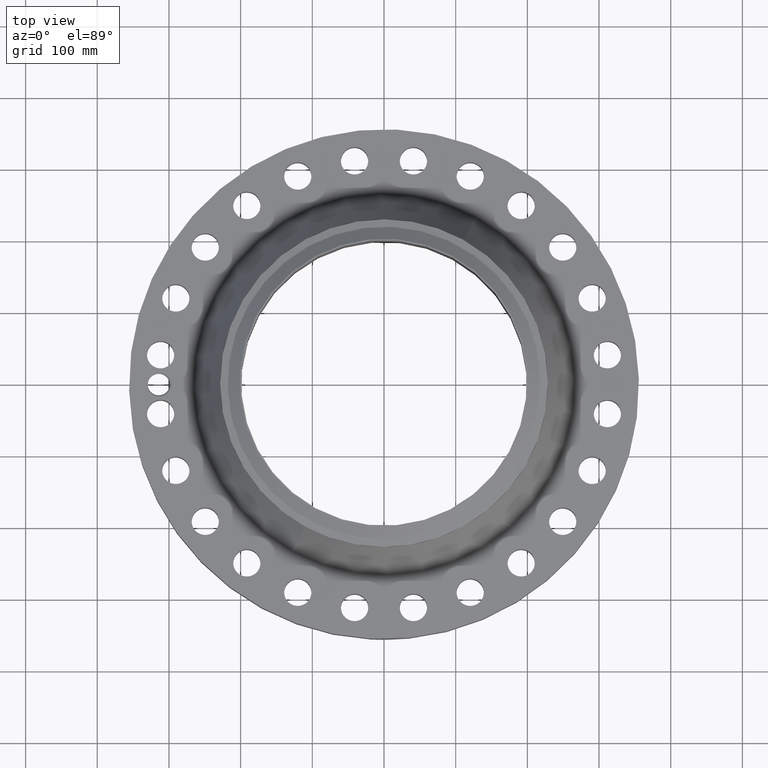
[diagram: clean part render]
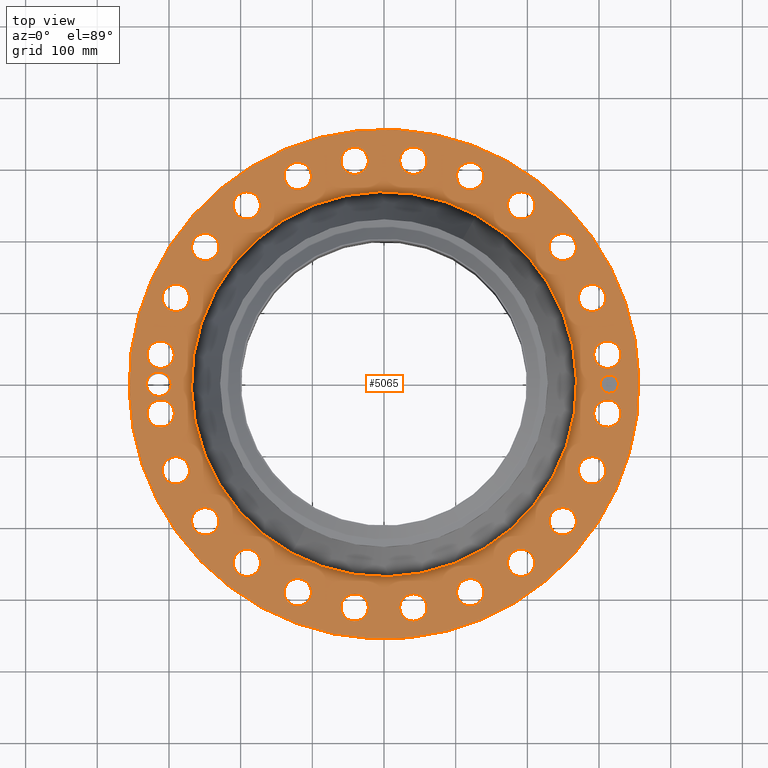
[diagram: same view with one face highlighted and labeled with its STEP entity id]
A machine part, top view. The second image highlights one B-rep face of the part: STEP entity #5065.
In plain terms, the highlighted planar face has unit normal (0, 0, -1).
Its self-contained STEP definition (entity closure, byte-faithful):
#3574=AXIS2_PLACEMENT_3D('Circle Axis2P3D',#3572,#3573,$) ;
#3600=AXIS2_PLACEMENT_3D('Circle Axis2P3D',#3598,#3599,$) ;
#4545=AXIS2_PLACEMENT_3D('Plane Axis2P3D',#4542,#4543,#4544) ;
#4549=AXIS2_PLACEMENT_3D('Circle Axis2P3D',#4547,#4548,$) ;
#4558=AXIS2_PLACEMENT_3D('Circle Axis2P3D',#4556,#4557,$) ;
#4595=AXIS2_PLACEMENT_3D('Circle Axis2P3D',#4593,#4594,$) ;
#4602=AXIS2_PLACEMENT_3D('Circle Axis2P3D',#4600,#4601,$) ;
#4613=AXIS2_PLACEMENT_3D('Circle Axis2P3D',#4611,#4612,$) ;
#4622=AXIS2_PLACEMENT_3D('Circle Axis2P3D',#4620,#4621,$) ;
#4635=AXIS2_PLACEMENT_3D('Circle Axis2P3D',#4633,#4634,$) ;
#4644=AXIS2_PLACEMENT_3D('Circle Axis2P3D',#4642,#4643,$) ;
#4653=AXIS2_PLACEMENT_3D('Circle Axis2P3D',#4651,#4652,$) ;
#4662=AXIS2_PLACEMENT_3D('Circle Axis2P3D',#4660,#4661,$) ;
#4671=AXIS2_PLACEMENT_3D('Circle Axis2P3D',#4669,#4670,$) ;
#4680=AXIS2_PLACEMENT_3D('Circle Axis2P3D',#4678,#4679,$) ;
#4689=AXIS2_PLACEMENT_3D('Circle Axis2P3D',#4687,#4688,$) ;
#4698=AXIS2_PLACEMENT_3D('Circle Axis2P3D',#4696,#4697,$) ;
#4707=AXIS2_PLACEMENT_3D('Circle Axis2P3D',#4705,#4706,$) ;
#4716=AXIS2_PLACEMENT_3D('Circle Axis2P3D',#4714,#4715,$) ;
#4725=AXIS2_PLACEMENT_3D('Circle Axis2P3D',#4723,#4724,$) ;
#4734=AXIS2_PLACEMENT_3D('Circle Axis2P3D',#4732,#4733,$) ;
#4743=AXIS2_PLACEMENT_3D('Circle Axis2P3D',#4741,#4742,$) ;
#4752=AXIS2_PLACEMENT_3D('Circle Axis2P3D',#4750,#4751,$) ;
#4761=AXIS2_PLACEMENT_3D('Circle Axis2P3D',#4759,#4760,$) ;
#4770=AXIS2_PLACEMENT_3D('Circle Axis2P3D',#4768,#4769,$) ;
#4779=AXIS2_PLACEMENT_3D('Circle Axis2P3D',#4777,#4778,$) ;
#4788=AXIS2_PLACEMENT_3D('Circle Axis2P3D',#4786,#4787,$) ;
#4797=AXIS2_PLACEMENT_3D('Circle Axis2P3D',#4795,#4796,$) ;
#4806=AXIS2_PLACEMENT_3D('Circle Axis2P3D',#4804,#4805,$) ;
#4815=AXIS2_PLACEMENT_3D('Circle Axis2P3D',#4813,#4814,$) ;
#4824=AXIS2_PLACEMENT_3D('Circle Axis2P3D',#4822,#4823,$) ;
#4833=AXIS2_PLACEMENT_3D('Circle Axis2P3D',#4831,#4832,$) ;
#4842=AXIS2_PLACEMENT_3D('Circle Axis2P3D',#4840,#4841,$) ;
#4851=AXIS2_PLACEMENT_3D('Circle Axis2P3D',#4849,#4850,$) ;
#4860=AXIS2_PLACEMENT_3D('Circle Axis2P3D',#4858,#4859,$) ;
#4869=AXIS2_PLACEMENT_3D('Circle Axis2P3D',#4867,#4868,$) ;
#4878=AXIS2_PLACEMENT_3D('Circle Axis2P3D',#4876,#4877,$) ;
#4887=AXIS2_PLACEMENT_3D('Circle Axis2P3D',#4885,#4886,$) ;
#4896=AXIS2_PLACEMENT_3D('Circle Axis2P3D',#4894,#4895,$) ;
#4905=AXIS2_PLACEMENT_3D('Circle Axis2P3D',#4903,#4904,$) ;
#4914=AXIS2_PLACEMENT_3D('Circle Axis2P3D',#4912,#4913,$) ;
#4923=AXIS2_PLACEMENT_3D('Circle Axis2P3D',#4921,#4922,$) ;
#4932=AXIS2_PLACEMENT_3D('Circle Axis2P3D',#4930,#4931,$) ;
#4941=AXIS2_PLACEMENT_3D('Circle Axis2P3D',#4939,#4940,$) ;
#4950=AXIS2_PLACEMENT_3D('Circle Axis2P3D',#4948,#4949,$) ;
#4959=AXIS2_PLACEMENT_3D('Circle Axis2P3D',#4957,#4958,$) ;
#4968=AXIS2_PLACEMENT_3D('Circle Axis2P3D',#4966,#4967,$) ;
#4977=AXIS2_PLACEMENT_3D('Circle Axis2P3D',#4975,#4976,$) ;
#4986=AXIS2_PLACEMENT_3D('Circle Axis2P3D',#4984,#4985,$) ;
#4995=AXIS2_PLACEMENT_3D('Circle Axis2P3D',#4993,#4994,$) ;
#5004=AXIS2_PLACEMENT_3D('Circle Axis2P3D',#5002,#5003,$) ;
#5013=AXIS2_PLACEMENT_3D('Circle Axis2P3D',#5011,#5012,$) ;
#5022=AXIS2_PLACEMENT_3D('Circle Axis2P3D',#5020,#5021,$) ;
#5031=AXIS2_PLACEMENT_3D('Circle Axis2P3D',#5029,#5030,$) ;
#5040=AXIS2_PLACEMENT_3D('Circle Axis2P3D',#5038,#5039,$) ;
#5049=AXIS2_PLACEMENT_3D('Circle Axis2P3D',#5047,#5048,$) ;
#5058=AXIS2_PLACEMENT_3D('Circle Axis2P3D',#5056,#5057,$) ;
#3572=CARTESIAN_POINT('Axis2P3D Location',(0.,0.,2.93200000001)) ;
#3576=CARTESIAN_POINT('Vertex',(-5.06982919661,-9.28026009557,2.93200000001)) ;
#3578=CARTESIAN_POINT('Vertex',(5.06982919661,9.28026009557,2.93200000001)) ;
#3598=CARTESIAN_POINT('Axis2P3D Location',(0.,0.,2.93200000001)) ;
#4542=CARTESIAN_POINT('Axis2P3D Location',(0.,14.0000000001,2.93200000001)) ;
#4547=CARTESIAN_POINT('Axis2P3D Location',(0.,0.,2.93200000001)) ;
#4551=CARTESIAN_POINT('Vertex',(6.71195754049,12.2861558665,2.93200000001)) ;
#4553=CARTESIAN_POINT('Vertex',(-6.71195754049,-12.2861558665,2.93200000001)) ;
#4556=CARTESIAN_POINT('Axis2P3D Location',(0.,0.,2.93200000001)) ;
#4566=CARTESIAN_POINT('Control Point',(-11.6875,0.,2.93200000001)) ;
#4567=CARTESIAN_POINT('Control Point',(-11.6898630864,0.0644949468364,2.93200000001)) ;
#4568=CARTESIAN_POINT('Control Point',(-11.6997943863,0.128582366952,2.93200000001)) ;
#4569=CARTESIAN_POINT('Control Point',(-11.717233344,0.191067040736,2.93200000001)) ;
#4570=CARTESIAN_POINT('Control Point',(-11.754656436,0.281919351086,2.93200000001)) ;
#4571=CARTESIAN_POINT('Control Point',(-11.807254365,0.363946381804,2.93200000001)) ;
#4572=CARTESIAN_POINT('Control Point',(-11.8269876698,0.390887015035,2.93200000001)) ;
#4573=CARTESIAN_POINT('Control Point',(-11.8483164791,0.416507286149,2.93200000001)) ;
#4574=CARTESIAN_POINT('Control Point',(-11.8711216732,0.440684685191,2.93200000001)) ;
#4575=CARTESIAN_POINT('Vertex',(-11.6875,0.,2.93200000001)) ;
#4577=CARTESIAN_POINT('Vertex',(-11.8711216732,0.440684685191,2.93200000001)) ;
#4581=CARTESIAN_POINT('Control Point',(-11.6875,2.23792987641E-015,2.93200000001)) ;
#4582=CARTESIAN_POINT('Control Point',(-11.6898637452,-0.0645129252923,2.93200000001)) ;
#4583=CARTESIAN_POINT('Control Point',(-11.6997999211,-0.128618094405,2.93200000001)) ;
#4584=CARTESIAN_POINT('Control Point',(-11.7172377248,-0.191096276517,2.93200000001)) ;
#4585=CARTESIAN_POINT('Control Point',(-11.7546734013,-0.281977139815,2.93200000001)) ;
#4586=CARTESIAN_POINT('Control Point',(-11.8072635516,-0.363983566263,2.93200000001)) ;
#4587=CARTESIAN_POINT('Control Point',(-11.8270220494,-0.390950046856,2.93200000001)) ;
#4588=CARTESIAN_POINT('Control Point',(-11.8483754451,-0.416588625406,2.93200000001)) ;
#4589=CARTESIAN_POINT('Control Point',(-11.8712035038,-0.440778232698,2.93200000001)) ;
#4590=CARTESIAN_POINT('Vertex',(-11.8712035038,-0.440778232698,2.93200000001)) ;
#4593=CARTESIAN_POINT('Axis2P3D Location',(-12.375,-8.95171950564E-015,2.93200000001)) ;
#4597=CARTESIAN_POINT('Vertex',(-12.962453767,0.320927455543,2.93200000001)) ;
#4600=CARTESIAN_POINT('Axis2P3D Location',(-12.375,-8.95171950564E-015,2.93200000001)) ;
#4611=CARTESIAN_POINT('Axis2P3D Location',(12.2691301595,-1.61526162873,2.93200000001)) ;
#4615=CARTESIAN_POINT('Vertex',(11.6109432381,-1.25569247478,2.93200000001)) ;
#4617=CARTESIAN_POINT('Vertex',(12.927317081,-1.97483078268,2.93200000001)) ;
#4620=CARTESIAN_POINT('Axis2P3D Location',(12.2691301595,-1.61526162873,2.93200000001)) ;
#4633=CARTESIAN_POINT('Axis2P3D Location',(11.4330092149,-4.73570747554,2.93200000001)) ;
#4637=CARTESIAN_POINT('Vertex',(11.9757056157,-5.25337591818,2.93200000001)) ;
#4639=CARTESIAN_POINT('Vertex',(10.890312814,-4.21803903289,2.93200000001)) ;
#4642=CARTESIAN_POINT('Axis2P3D Location',(11.4330092149,-4.73570747554,2.93200000001)) ;
#4651=CARTESIAN_POINT('Axis2P3D Location',(9.81774758614,-7.53342268401,2.93200000001)) ;
#4655=CARTESIAN_POINT('Vertex',(10.2079696036,-8.17391216647,2.93200000001)) ;
#4657=CARTESIAN_POINT('Vertex',(9.42752556873,-6.89293320156,2.93200000001)) ;
#4660=CARTESIAN_POINT('Axis2P3D Location',(9.81774758614,-7.53342268401,2.93200000001)) ;
#4669=CARTESIAN_POINT('Axis2P3D Location',(7.53342268401,-9.81774758614,2.93200000001)) ;
#4673=CARTESIAN_POINT('Vertex',(7.74457733237,-10.5374098086,2.93200000001)) ;
#4675=CARTESIAN_POINT('Vertex',(7.32226803566,-9.09808536365,2.93200000001)) ;
#4678=CARTESIAN_POINT('Axis2P3D Location',(7.53342268401,-9.81774758614,2.93200000001)) ;
#4687=CARTESIAN_POINT('Axis2P3D Location',(4.73570747554,-11.4330092149,2.93200000001)) ;
#4691=CARTESIAN_POINT('Vertex',(4.75340491451,-12.1828003862,2.93200000001)) ;
#4693=CARTESIAN_POINT('Vertex',(4.71801003657,-10.6832180435,2.93200000001)) ;
#4696=CARTESIAN_POINT('Axis2P3D Location',(4.73570747554,-11.4330092149,2.93200000001)) ;
#4705=CARTESIAN_POINT('Axis2P3D Location',(1.61526162873,-12.2691301595,2.93200000001)) ;
#4709=CARTESIAN_POINT('Vertex',(1.43829580709,-12.9979532506,2.93200000001)) ;
#4711=CARTESIAN_POINT('Vertex',(1.79222745037,-11.5403070685,2.93200000001)) ;
#4714=CARTESIAN_POINT('Axis2P3D Location',(1.61526162873,-12.2691301595,2.93200000001)) ;
#4723=CARTESIAN_POINT('Axis2P3D Location',(-1.61526162873,-12.2691301595,2.93200000001)) ;
#4727=CARTESIAN_POINT('Vertex',(-1.97483078268,-12.927317081,2.93200000001)) ;
#4729=CARTESIAN_POINT('Vertex',(-1.25569247478,-11.6109432381,2.93200000001)) ;
#4732=CARTESIAN_POINT('Axis2P3D Location',(-1.61526162873,-12.2691301595,2.93200000001)) ;
#4741=CARTESIAN_POINT('Axis2P3D Location',(-4.73570747554,-11.4330092149,2.93200000001)) ;
#4745=CARTESIAN_POINT('Vertex',(-5.25337591818,-11.9757056157,2.93200000001)) ;
#4747=CARTESIAN_POINT('Vertex',(-4.21803903289,-10.890312814,2.93200000001)) ;
#4750=CARTESIAN_POINT('Axis2P3D Location',(-4.73570747554,-11.4330092149,2.93200000001)) ;
#4759=CARTESIAN_POINT('Axis2P3D Location',(-7.53342268401,-9.81774758614,2.93200000001)) ;
#4763=CARTESIAN_POINT('Vertex',(-8.17391216647,-10.2079696036,2.93200000001)) ;
#4765=CARTESIAN_POINT('Vertex',(-6.89293320156,-9.42752556873,2.93200000001)) ;
#4768=CARTESIAN_POINT('Axis2P3D Location',(-7.53342268401,-9.81774758614,2.93200000001)) ;
#4777=CARTESIAN_POINT('Axis2P3D Location',(-9.81774758614,-7.53342268401,2.93200000001)) ;
#4781=CARTESIAN_POINT('Vertex',(-10.5374098086,-7.74457733237,2.93200000001)) ;
#4783=CARTESIAN_POINT('Vertex',(-9.09808536365,-7.32226803566,2.93200000001)) ;
#4786=CARTESIAN_POINT('Axis2P3D Location',(-9.81774758614,-7.53342268401,2.93200000001)) ;
#4795=CARTESIAN_POINT('Axis2P3D Location',(-11.4330092149,-4.73570747554,2.93200000001)) ;
#4799=CARTESIAN_POINT('Vertex',(-12.1828003862,-4.75340491451,2.93200000001)) ;
#4801=CARTESIAN_POINT('Vertex',(-10.6832180435,-4.71801003657,2.93200000001)) ;
#4804=CARTESIAN_POINT('Axis2P3D Location',(-11.4330092149,-4.73570747554,2.93200000001)) ;
#4813=CARTESIAN_POINT('Axis2P3D Location',(-12.2691301595,-1.61526162873,2.93200000001)) ;
#4817=CARTESIAN_POINT('Vertex',(-12.9979532506,-1.43829580709,2.93200000001)) ;
#4819=CARTESIAN_POINT('Vertex',(-11.5403070685,-1.79222745037,2.93200000001)) ;
#4822=CARTESIAN_POINT('Axis2P3D Location',(-12.2691301595,-1.61526162873,2.93200000001)) ;
#4831=CARTESIAN_POINT('Axis2P3D Location',(-12.2691301595,1.61526162873,2.93200000001)) ;
#4835=CARTESIAN_POINT('Vertex',(-12.927317081,1.97483078268,2.93200000001)) ;
#4837=CARTESIAN_POINT('Vertex',(-11.6109432381,1.25569247478,2.93200000001)) ;
#4840=CARTESIAN_POINT('Axis2P3D Location',(-12.2691301595,1.61526162873,2.93200000001)) ;
#4849=CARTESIAN_POINT('Axis2P3D Location',(-11.4330092149,4.73570747554,2.93200000001)) ;
#4853=CARTESIAN_POINT('Vertex',(-11.9757056157,5.25337591818,2.93200000001)) ;
#4855=CARTESIAN_POINT('Vertex',(-10.890312814,4.21803903289,2.93200000001)) ;
#4858=CARTESIAN_POINT('Axis2P3D Location',(-11.4330092149,4.73570747554,2.93200000001)) ;
#4867=CARTESIAN_POINT('Axis2P3D Location',(-9.81774758614,7.53342268401,2.93200000001)) ;
#4871=CARTESIAN_POINT('Vertex',(-10.2079696036,8.17391216647,2.93200000001)) ;
#4873=CARTESIAN_POINT('Vertex',(-9.42752556873,6.89293320156,2.93200000001)) ;
#4876=CARTESIAN_POINT('Axis2P3D Location',(-9.81774758614,7.53342268401,2.93200000001)) ;
#4885=CARTESIAN_POINT('Axis2P3D Location',(-7.53342268401,9.81774758614,2.93200000001)) ;
#4889=CARTESIAN_POINT('Vertex',(-7.74457733237,10.5374098086,2.93200000001)) ;
#4891=CARTESIAN_POINT('Vertex',(-7.32226803566,9.09808536365,2.93200000001)) ;
#4894=CARTESIAN_POINT('Axis2P3D Location',(-7.53342268401,9.81774758614,2.93200000001)) ;
#4903=CARTESIAN_POINT('Axis2P3D Location',(-4.73570747554,11.4330092149,2.93200000001)) ;
#4907=CARTESIAN_POINT('Vertex',(-4.75340491451,12.1828003862,2.93200000001)) ;
#4909=CARTESIAN_POINT('Vertex',(-4.71801003657,10.6832180435,2.93200000001)) ;
#4912=CARTESIAN_POINT('Axis2P3D Location',(-4.73570747554,11.4330092149,2.93200000001)) ;
#4921=CARTESIAN_POINT('Axis2P3D Location',(-1.61526162873,12.2691301595,2.93200000001)) ;
#4925=CARTESIAN_POINT('Vertex',(-1.43829580709,12.9979532506,2.93200000001)) ;
#4927=CARTESIAN_POINT('Vertex',(-1.79222745037,11.5403070685,2.93200000001)) ;
#4930=CARTESIAN_POINT('Axis2P3D Location',(-1.61526162873,12.2691301595,2.93200000001)) ;
#4939=CARTESIAN_POINT('Axis2P3D Location',(1.61526162873,12.2691301595,2.93200000001)) ;
#4943=CARTESIAN_POINT('Vertex',(1.97483078268,12.927317081,2.93200000001)) ;
#4945=CARTESIAN_POINT('Vertex',(1.25569247478,11.6109432381,2.93200000001)) ;
#4948=CARTESIAN_POINT('Axis2P3D Location',(1.61526162873,12.2691301595,2.93200000001)) ;
#4957=CARTESIAN_POINT('Axis2P3D Location',(4.73570747554,11.4330092149,2.93200000001)) ;
#4961=CARTESIAN_POINT('Vertex',(5.25337591818,11.9757056157,2.93200000001)) ;
#4963=CARTESIAN_POINT('Vertex',(4.21803903289,10.890312814,2.93200000001)) ;
#4966=CARTESIAN_POINT('Axis2P3D Location',(4.73570747554,11.4330092149,2.93200000001)) ;
#4975=CARTESIAN_POINT('Axis2P3D Location',(7.53342268401,9.81774758614,2.93200000001)) ;
#4979=CARTESIAN_POINT('Vertex',(8.17391216647,10.2079696036,2.93200000001)) ;
#4981=CARTESIAN_POINT('Vertex',(6.89293320156,9.42752556873,2.93200000001)) ;
#4984=CARTESIAN_POINT('Axis2P3D Location',(7.53342268401,9.81774758614,2.93200000001)) ;
#4993=CARTESIAN_POINT('Axis2P3D Location',(9.81774758614,7.53342268401,2.93200000001)) ;
#4997=CARTESIAN_POINT('Vertex',(10.5374098086,7.74457733237,2.93200000001)) ;
#4999=CARTESIAN_POINT('Vertex',(9.09808536365,7.32226803566,2.93200000001)) ;
#5002=CARTESIAN_POINT('Axis2P3D Location',(9.81774758614,7.53342268401,2.93200000001)) ;
#5011=CARTESIAN_POINT('Axis2P3D Location',(11.4330092149,4.73570747554,2.93200000001)) ;
#5015=CARTESIAN_POINT('Vertex',(12.1828003862,4.75340491451,2.93200000001)) ;
#5017=CARTESIAN_POINT('Vertex',(10.6832180435,4.71801003657,2.93200000001)) ;
#5020=CARTESIAN_POINT('Axis2P3D Location',(11.4330092149,4.73570747554,2.93200000001)) ;
#5029=CARTESIAN_POINT('Axis2P3D Location',(12.2691301595,1.61526162873,2.93200000001)) ;
#5033=CARTESIAN_POINT('Vertex',(12.9979532506,1.43829580709,2.93200000001)) ;
#5035=CARTESIAN_POINT('Vertex',(11.5403070685,1.79222745037,2.93200000001)) ;
#5038=CARTESIAN_POINT('Axis2P3D Location',(12.2691301595,1.61526162873,2.93200000001)) ;
#5047=CARTESIAN_POINT('Axis2P3D Location',(12.375,0.,2.93200000001)) ;
#5051=CARTESIAN_POINT('Vertex',(12.375,0.499999995002,2.93200000001)) ;
#5053=CARTESIAN_POINT('Vertex',(12.375,-0.499999995002,2.93200000001)) ;
#5056=CARTESIAN_POINT('Axis2P3D Location',(12.375,0.,2.93200000001)) ;
#3573=DIRECTION('Axis2P3D Direction',(0.,0.,-0.0393700787402)) ;
#3599=DIRECTION('Axis2P3D Direction',(0.,0.,-0.0393700787402)) ;
#4543=DIRECTION('Axis2P3D Direction',(0.,0.,-0.0393700787402)) ;
#4544=DIRECTION('Axis2P3D XDirection',(0.0393700787402,0.,0.)) ;
#4548=DIRECTION('Axis2P3D Direction',(0.,0.,-0.0393700787402)) ;
#4557=DIRECTION('Axis2P3D Direction',(0.,0.,-0.0393700787402)) ;
#4594=DIRECTION('Axis2P3D Direction',(0.,0.,-0.0393700787402)) ;
#4601=DIRECTION('Axis2P3D Direction',(0.,0.,-0.0393700787402)) ;
#4612=DIRECTION('Axis2P3D Direction',(0.,0.,-0.0393700787402)) ;
#4621=DIRECTION('Axis2P3D Direction',(0.,0.,-0.0393700787402)) ;
#4634=DIRECTION('Axis2P3D Direction',(0.,0.,-0.0393700787402)) ;
#4643=DIRECTION('Axis2P3D Direction',(0.,0.,-0.0393700787402)) ;
#4652=DIRECTION('Axis2P3D Direction',(0.,0.,-0.0393700787402)) ;
#4661=DIRECTION('Axis2P3D Direction',(0.,0.,-0.0393700787402)) ;
#4670=DIRECTION('Axis2P3D Direction',(0.,0.,-0.0393700787402)) ;
#4679=DIRECTION('Axis2P3D Direction',(0.,0.,-0.0393700787402)) ;
#4688=DIRECTION('Axis2P3D Direction',(0.,0.,-0.0393700787402)) ;
#4697=DIRECTION('Axis2P3D Direction',(0.,0.,-0.0393700787402)) ;
#4706=DIRECTION('Axis2P3D Direction',(0.,0.,-0.0393700787402)) ;
#4715=DIRECTION('Axis2P3D Direction',(0.,0.,-0.0393700787402)) ;
#4724=DIRECTION('Axis2P3D Direction',(0.,0.,-0.0393700787402)) ;
#4733=DIRECTION('Axis2P3D Direction',(0.,0.,-0.0393700787402)) ;
#4742=DIRECTION('Axis2P3D Direction',(0.,0.,-0.0393700787402)) ;
#4751=DIRECTION('Axis2P3D Direction',(0.,0.,-0.0393700787402)) ;
#4760=DIRECTION('Axis2P3D Direction',(0.,0.,-0.0393700787402)) ;
#4769=DIRECTION('Axis2P3D Direction',(0.,0.,-0.0393700787402)) ;
#4778=DIRECTION('Axis2P3D Direction',(0.,0.,-0.0393700787402)) ;
#4787=DIRECTION('Axis2P3D Direction',(0.,0.,-0.0393700787402)) ;
#4796=DIRECTION('Axis2P3D Direction',(0.,0.,-0.0393700787402)) ;
#4805=DIRECTION('Axis2P3D Direction',(0.,0.,-0.0393700787402)) ;
#4814=DIRECTION('Axis2P3D Direction',(0.,0.,-0.0393700787402)) ;
#4823=DIRECTION('Axis2P3D Direction',(0.,0.,-0.0393700787402)) ;
#4832=DIRECTION('Axis2P3D Direction',(0.,0.,-0.0393700787402)) ;
#4841=DIRECTION('Axis2P3D Direction',(0.,0.,-0.0393700787402)) ;
#4850=DIRECTION('Axis2P3D Direction',(0.,0.,-0.0393700787402)) ;
#4859=DIRECTION('Axis2P3D Direction',(0.,0.,-0.0393700787402)) ;
#4868=DIRECTION('Axis2P3D Direction',(0.,0.,-0.0393700787402)) ;
#4877=DIRECTION('Axis2P3D Direction',(0.,0.,-0.0393700787402)) ;
#4886=DIRECTION('Axis2P3D Direction',(0.,0.,-0.0393700787402)) ;
#4895=DIRECTION('Axis2P3D Direction',(0.,0.,-0.0393700787402)) ;
#4904=DIRECTION('Axis2P3D Direction',(0.,0.,-0.0393700787402)) ;
#4913=DIRECTION('Axis2P3D Direction',(0.,0.,-0.0393700787402)) ;
#4922=DIRECTION('Axis2P3D Direction',(0.,0.,-0.0393700787402)) ;
#4931=DIRECTION('Axis2P3D Direction',(0.,0.,-0.0393700787402)) ;
#4940=DIRECTION('Axis2P3D Direction',(0.,0.,-0.0393700787402)) ;
#4949=DIRECTION('Axis2P3D Direction',(0.,0.,-0.0393700787402)) ;
#4958=DIRECTION('Axis2P3D Direction',(0.,0.,-0.0393700787402)) ;
#4967=DIRECTION('Axis2P3D Direction',(0.,0.,-0.0393700787402)) ;
#4976=DIRECTION('Axis2P3D Direction',(0.,0.,-0.0393700787402)) ;
#4985=DIRECTION('Axis2P3D Direction',(0.,0.,-0.0393700787402)) ;
#4994=DIRECTION('Axis2P3D Direction',(0.,0.,-0.0393700787402)) ;
#5003=DIRECTION('Axis2P3D Direction',(0.,0.,-0.0393700787402)) ;
#5012=DIRECTION('Axis2P3D Direction',(0.,0.,-0.0393700787402)) ;
#5021=DIRECTION('Axis2P3D Direction',(0.,0.,-0.0393700787402)) ;
#5030=DIRECTION('Axis2P3D Direction',(0.,0.,-0.0393700787402)) ;
#5039=DIRECTION('Axis2P3D Direction',(0.,0.,-0.0393700787402)) ;
#5048=DIRECTION('Axis2P3D Direction',(0.,0.,-0.0393700787402)) ;
#5057=DIRECTION('Axis2P3D Direction',(0.,0.,-0.0393700787402)) ;
#4562=ORIENTED_EDGE('',*,*,#4555,.F.) ;
#4563=ORIENTED_EDGE('',*,*,#4560,.F.) ;
#4606=ORIENTED_EDGE('',*,*,#4579,.F.) ;
#4607=ORIENTED_EDGE('',*,*,#4592,.T.) ;
#4608=ORIENTED_EDGE('',*,*,#4599,.T.) ;
#4609=ORIENTED_EDGE('',*,*,#4604,.T.) ;
#4626=ORIENTED_EDGE('',*,*,#4619,.T.) ;
#4627=ORIENTED_EDGE('',*,*,#4624,.T.) ;
#4630=ORIENTED_EDGE('',*,*,#3580,.T.) ;
#4631=ORIENTED_EDGE('',*,*,#3602,.T.) ;
#4648=ORIENTED_EDGE('',*,*,#4641,.T.) ;
#4649=ORIENTED_EDGE('',*,*,#4646,.T.) ;
#4666=ORIENTED_EDGE('',*,*,#4659,.T.) ;
#4667=ORIENTED_EDGE('',*,*,#4664,.T.) ;
#4684=ORIENTED_EDGE('',*,*,#4677,.T.) ;
#4685=ORIENTED_EDGE('',*,*,#4682,.T.) ;
#4702=ORIENTED_EDGE('',*,*,#4695,.T.) ;
#4703=ORIENTED_EDGE('',*,*,#4700,.T.) ;
#4720=ORIENTED_EDGE('',*,*,#4713,.T.) ;
#4721=ORIENTED_EDGE('',*,*,#4718,.T.) ;
#4738=ORIENTED_EDGE('',*,*,#4731,.T.) ;
#4739=ORIENTED_EDGE('',*,*,#4736,.T.) ;
#4756=ORIENTED_EDGE('',*,*,#4749,.T.) ;
#4757=ORIENTED_EDGE('',*,*,#4754,.T.) ;
#4774=ORIENTED_EDGE('',*,*,#4767,.T.) ;
#4775=ORIENTED_EDGE('',*,*,#4772,.T.) ;
#4792=ORIENTED_EDGE('',*,*,#4785,.T.) ;
#4793=ORIENTED_EDGE('',*,*,#4790,.T.) ;
#4810=ORIENTED_EDGE('',*,*,#4803,.T.) ;
#4811=ORIENTED_EDGE('',*,*,#4808,.T.) ;
#4828=ORIENTED_EDGE('',*,*,#4821,.T.) ;
#4829=ORIENTED_EDGE('',*,*,#4826,.T.) ;
#4846=ORIENTED_EDGE('',*,*,#4839,.T.) ;
#4847=ORIENTED_EDGE('',*,*,#4844,.T.) ;
#4864=ORIENTED_EDGE('',*,*,#4857,.T.) ;
#4865=ORIENTED_EDGE('',*,*,#4862,.T.) ;
#4882=ORIENTED_EDGE('',*,*,#4875,.T.) ;
#4883=ORIENTED_EDGE('',*,*,#4880,.T.) ;
#4900=ORIENTED_EDGE('',*,*,#4893,.T.) ;
#4901=ORIENTED_EDGE('',*,*,#4898,.T.) ;
#4918=ORIENTED_EDGE('',*,*,#4911,.T.) ;
#4919=ORIENTED_EDGE('',*,*,#4916,.T.) ;
#4936=ORIENTED_EDGE('',*,*,#4929,.T.) ;
#4937=ORIENTED_EDGE('',*,*,#4934,.T.) ;
#4954=ORIENTED_EDGE('',*,*,#4947,.T.) ;
#4955=ORIENTED_EDGE('',*,*,#4952,.T.) ;
#4972=ORIENTED_EDGE('',*,*,#4965,.T.) ;
#4973=ORIENTED_EDGE('',*,*,#4970,.T.) ;
#4990=ORIENTED_EDGE('',*,*,#4983,.T.) ;
#4991=ORIENTED_EDGE('',*,*,#4988,.T.) ;
#5008=ORIENTED_EDGE('',*,*,#5001,.T.) ;
#5009=ORIENTED_EDGE('',*,*,#5006,.T.) ;
#5026=ORIENTED_EDGE('',*,*,#5019,.T.) ;
#5027=ORIENTED_EDGE('',*,*,#5024,.T.) ;
#5044=ORIENTED_EDGE('',*,*,#5037,.T.) ;
#5045=ORIENTED_EDGE('',*,*,#5042,.T.) ;
#5062=ORIENTED_EDGE('',*,*,#5055,.T.) ;
#5063=ORIENTED_EDGE('',*,*,#5060,.T.) ;
#4610=FACE_BOUND('',#4605,.T.) ;
#4628=FACE_BOUND('',#4625,.T.) ;
#4632=FACE_BOUND('',#4629,.T.) ;
#4650=FACE_BOUND('',#4647,.T.) ;
#4668=FACE_BOUND('',#4665,.T.) ;
#4686=FACE_BOUND('',#4683,.T.) ;
#4704=FACE_BOUND('',#4701,.T.) ;
#4722=FACE_BOUND('',#4719,.T.) ;
#4740=FACE_BOUND('',#4737,.T.) ;
#4758=FACE_BOUND('',#4755,.T.) ;
#4776=FACE_BOUND('',#4773,.T.) ;
#4794=FACE_BOUND('',#4791,.T.) ;
#4812=FACE_BOUND('',#4809,.T.) ;
#4830=FACE_BOUND('',#4827,.T.) ;
#4848=FACE_BOUND('',#4845,.T.) ;
#4866=FACE_BOUND('',#4863,.T.) ;
#4884=FACE_BOUND('',#4881,.T.) ;
#4902=FACE_BOUND('',#4899,.T.) ;
#4920=FACE_BOUND('',#4917,.T.) ;
#4938=FACE_BOUND('',#4935,.T.) ;
#4956=FACE_BOUND('',#4953,.T.) ;
#4974=FACE_BOUND('',#4971,.T.) ;
#4992=FACE_BOUND('',#4989,.T.) ;
#5010=FACE_BOUND('',#5007,.T.) ;
#5028=FACE_BOUND('',#5025,.T.) ;
#5046=FACE_BOUND('',#5043,.T.) ;
#5064=FACE_BOUND('',#5061,.T.) ;
#5065=ADVANCED_FACE('PartBody',(#4564,#4610,#4628,#4632,#4650,#4668,#4686,#4704,#4722,#4740,#4758,#4776,#4794,#4812,#4830,#4848,#4866,#4884,#4902,#4920,#4938,#4956,#4974,#4992,#5010,#5028,#5046,#5064),#4546,.F.) ;
#4565=B_SPLINE_CURVE_WITH_KNOTS('',5,(#4566,#4567,#4568,#4569,#4570,#4571,#4572,#4573,#4574),.UNSPECIFIED.,.F.,.U.,(6,3,6),(0.,11.2736231967,17.1557417715),.UNSPECIFIED.) ;
#4580=B_SPLINE_CURVE_WITH_KNOTS('',5,(#4581,#4582,#4583,#4584,#4585,#4586,#4587,#4588,#4589),.UNSPECIFIED.,.F.,.U.,(6,3,6),(0.,11.2767658049,17.1737917809),.UNSPECIFIED.) ;
#3575=CIRCLE('generated circle',#3574,10.5748000229) ;
#3601=CIRCLE('generated circle',#3600,10.5748000229) ;
#4550=CIRCLE('generated circle',#4549,14.0000000001) ;
#4559=CIRCLE('generated circle',#4558,14.0000000001) ;
#4596=CIRCLE('generated circle',#4595,0.669400000003) ;
#4603=CIRCLE('generated circle',#4602,0.669400000003) ;
#4614=CIRCLE('generated circle',#4613,0.750000000003) ;
#4623=CIRCLE('generated circle',#4622,0.750000000003) ;
#4636=CIRCLE('generated circle',#4635,0.750000000003) ;
#4645=CIRCLE('generated circle',#4644,0.750000000003) ;
#4654=CIRCLE('generated circle',#4653,0.750000000003) ;
#4663=CIRCLE('generated circle',#4662,0.750000000003) ;
#4672=CIRCLE('generated circle',#4671,0.750000000003) ;
#4681=CIRCLE('generated circle',#4680,0.750000000003) ;
#4690=CIRCLE('generated circle',#4689,0.750000000003) ;
#4699=CIRCLE('generated circle',#4698,0.750000000003) ;
#4708=CIRCLE('generated circle',#4707,0.750000000003) ;
#4717=CIRCLE('generated circle',#4716,0.750000000003) ;
#4726=CIRCLE('generated circle',#4725,0.750000000003) ;
#4735=CIRCLE('generated circle',#4734,0.750000000003) ;
#4744=CIRCLE('generated circle',#4743,0.750000000003) ;
#4753=CIRCLE('generated circle',#4752,0.750000000003) ;
#4762=CIRCLE('generated circle',#4761,0.750000000003) ;
#4771=CIRCLE('generated circle',#4770,0.750000000003) ;
#4780=CIRCLE('generated circle',#4779,0.750000000003) ;
#4789=CIRCLE('generated circle',#4788,0.750000000003) ;
#4798=CIRCLE('generated circle',#4797,0.750000000003) ;
#4807=CIRCLE('generated circle',#4806,0.750000000003) ;
#4816=CIRCLE('generated circle',#4815,0.750000000003) ;
#4825=CIRCLE('generated circle',#4824,0.750000000003) ;
#4834=CIRCLE('generated circle',#4833,0.750000000003) ;
#4843=CIRCLE('generated circle',#4842,0.750000000003) ;
#4852=CIRCLE('generated circle',#4851,0.750000000003) ;
#4861=CIRCLE('generated circle',#4860,0.750000000003) ;
#4870=CIRCLE('generated circle',#4869,0.750000000003) ;
#4879=CIRCLE('generated circle',#4878,0.750000000003) ;
#4888=CIRCLE('generated circle',#4887,0.750000000003) ;
#4897=CIRCLE('generated circle',#4896,0.750000000003) ;
#4906=CIRCLE('generated circle',#4905,0.750000000003) ;
#4915=CIRCLE('generated circle',#4914,0.750000000003) ;
#4924=CIRCLE('generated circle',#4923,0.750000000003) ;
#4933=CIRCLE('generated circle',#4932,0.750000000003) ;
#4942=CIRCLE('generated circle',#4941,0.750000000003) ;
#4951=CIRCLE('generated circle',#4950,0.750000000003) ;
#4960=CIRCLE('generated circle',#4959,0.750000000003) ;
#4969=CIRCLE('generated circle',#4968,0.750000000003) ;
#4978=CIRCLE('generated circle',#4977,0.750000000003) ;
#4987=CIRCLE('generated circle',#4986,0.750000000003) ;
#4996=CIRCLE('generated circle',#4995,0.750000000003) ;
#5005=CIRCLE('generated circle',#5004,0.750000000003) ;
#5014=CIRCLE('generated circle',#5013,0.750000000003) ;
#5023=CIRCLE('generated circle',#5022,0.750000000003) ;
#5032=CIRCLE('generated circle',#5031,0.750000000003) ;
#5041=CIRCLE('generated circle',#5040,0.750000000003) ;
#5050=CIRCLE('generated circle',#5049,0.499999995002) ;
#5059=CIRCLE('generated circle',#5058,0.499999995002) ;
#3580=EDGE_CURVE('',#3577,#3579,#3575,.T.) ;
#3602=EDGE_CURVE('',#3579,#3577,#3601,.T.) ;
#4555=EDGE_CURVE('',#4552,#4554,#4550,.T.) ;
#4560=EDGE_CURVE('',#4554,#4552,#4559,.T.) ;
#4579=EDGE_CURVE('',#4576,#4578,#4565,.T.) ;
#4592=EDGE_CURVE('',#4576,#4591,#4580,.T.) ;
#4599=EDGE_CURVE('',#4591,#4598,#4596,.T.) ;
#4604=EDGE_CURVE('',#4598,#4578,#4603,.T.) ;
#4619=EDGE_CURVE('',#4616,#4618,#4614,.T.) ;
#4624=EDGE_CURVE('',#4618,#4616,#4623,.T.) ;
#4641=EDGE_CURVE('',#4638,#4640,#4636,.T.) ;
#4646=EDGE_CURVE('',#4640,#4638,#4645,.T.) ;
#4659=EDGE_CURVE('',#4656,#4658,#4654,.T.) ;
#4664=EDGE_CURVE('',#4658,#4656,#4663,.T.) ;
#4677=EDGE_CURVE('',#4674,#4676,#4672,.T.) ;
#4682=EDGE_CURVE('',#4676,#4674,#4681,.T.) ;
#4695=EDGE_CURVE('',#4692,#4694,#4690,.T.) ;
#4700=EDGE_CURVE('',#4694,#4692,#4699,.T.) ;
#4713=EDGE_CURVE('',#4710,#4712,#4708,.T.) ;
#4718=EDGE_CURVE('',#4712,#4710,#4717,.T.) ;
#4731=EDGE_CURVE('',#4728,#4730,#4726,.T.) ;
#4736=EDGE_CURVE('',#4730,#4728,#4735,.T.) ;
#4749=EDGE_CURVE('',#4746,#4748,#4744,.T.) ;
#4754=EDGE_CURVE('',#4748,#4746,#4753,.T.) ;
#4767=EDGE_CURVE('',#4764,#4766,#4762,.T.) ;
#4772=EDGE_CURVE('',#4766,#4764,#4771,.T.) ;
#4785=EDGE_CURVE('',#4782,#4784,#4780,.T.) ;
#4790=EDGE_CURVE('',#4784,#4782,#4789,.T.) ;
#4803=EDGE_CURVE('',#4800,#4802,#4798,.T.) ;
#4808=EDGE_CURVE('',#4802,#4800,#4807,.T.) ;
#4821=EDGE_CURVE('',#4818,#4820,#4816,.T.) ;
#4826=EDGE_CURVE('',#4820,#4818,#4825,.T.) ;
#4839=EDGE_CURVE('',#4836,#4838,#4834,.T.) ;
#4844=EDGE_CURVE('',#4838,#4836,#4843,.T.) ;
#4857=EDGE_CURVE('',#4854,#4856,#4852,.T.) ;
#4862=EDGE_CURVE('',#4856,#4854,#4861,.T.) ;
#4875=EDGE_CURVE('',#4872,#4874,#4870,.T.) ;
#4880=EDGE_CURVE('',#4874,#4872,#4879,.T.) ;
#4893=EDGE_CURVE('',#4890,#4892,#4888,.T.) ;
#4898=EDGE_CURVE('',#4892,#4890,#4897,.T.) ;
#4911=EDGE_CURVE('',#4908,#4910,#4906,.T.) ;
#4916=EDGE_CURVE('',#4910,#4908,#4915,.T.) ;
#4929=EDGE_CURVE('',#4926,#4928,#4924,.T.) ;
#4934=EDGE_CURVE('',#4928,#4926,#4933,.T.) ;
#4947=EDGE_CURVE('',#4944,#4946,#4942,.T.) ;
#4952=EDGE_CURVE('',#4946,#4944,#4951,.T.) ;
#4965=EDGE_CURVE('',#4962,#4964,#4960,.T.) ;
#4970=EDGE_CURVE('',#4964,#4962,#4969,.T.) ;
#4983=EDGE_CURVE('',#4980,#4982,#4978,.T.) ;
#4988=EDGE_CURVE('',#4982,#4980,#4987,.T.) ;
#5001=EDGE_CURVE('',#4998,#5000,#4996,.T.) ;
#5006=EDGE_CURVE('',#5000,#4998,#5005,.T.) ;
#5019=EDGE_CURVE('',#5016,#5018,#5014,.T.) ;
#5024=EDGE_CURVE('',#5018,#5016,#5023,.T.) ;
#5037=EDGE_CURVE('',#5034,#5036,#5032,.T.) ;
#5042=EDGE_CURVE('',#5036,#5034,#5041,.T.) ;
#5055=EDGE_CURVE('',#5052,#5054,#5050,.T.) ;
#5060=EDGE_CURVE('',#5054,#5052,#5059,.T.) ;
#4561=EDGE_LOOP('',(#4562,#4563)) ;
#4605=EDGE_LOOP('',(#4606,#4607,#4608,#4609)) ;
#4625=EDGE_LOOP('',(#4626,#4627)) ;
#4629=EDGE_LOOP('',(#4630,#4631)) ;
#4647=EDGE_LOOP('',(#4648,#4649)) ;
#4665=EDGE_LOOP('',(#4666,#4667)) ;
#4683=EDGE_LOOP('',(#4684,#4685)) ;
#4701=EDGE_LOOP('',(#4702,#4703)) ;
#4719=EDGE_LOOP('',(#4720,#4721)) ;
#4737=EDGE_LOOP('',(#4738,#4739)) ;
#4755=EDGE_LOOP('',(#4756,#4757)) ;
#4773=EDGE_LOOP('',(#4774,#4775)) ;
#4791=EDGE_LOOP('',(#4792,#4793)) ;
#4809=EDGE_LOOP('',(#4810,#4811)) ;
#4827=EDGE_LOOP('',(#4828,#4829)) ;
#4845=EDGE_LOOP('',(#4846,#4847)) ;
#4863=EDGE_LOOP('',(#4864,#4865)) ;
#4881=EDGE_LOOP('',(#4882,#4883)) ;
#4899=EDGE_LOOP('',(#4900,#4901)) ;
#4917=EDGE_LOOP('',(#4918,#4919)) ;
#4935=EDGE_LOOP('',(#4936,#4937)) ;
#4953=EDGE_LOOP('',(#4954,#4955)) ;
#4971=EDGE_LOOP('',(#4972,#4973)) ;
#4989=EDGE_LOOP('',(#4990,#4991)) ;
#5007=EDGE_LOOP('',(#5008,#5009)) ;
#5025=EDGE_LOOP('',(#5026,#5027)) ;
#5043=EDGE_LOOP('',(#5044,#5045)) ;
#5061=EDGE_LOOP('',(#5062,#5063)) ;
#4564=FACE_OUTER_BOUND('',#4561,.T.) ;
#4546=PLANE('',#4545) ;
#3577=VERTEX_POINT('',#3576) ;
#3579=VERTEX_POINT('',#3578) ;
#4552=VERTEX_POINT('',#4551) ;
#4554=VERTEX_POINT('',#4553) ;
#4576=VERTEX_POINT('',#4575) ;
#4578=VERTEX_POINT('',#4577) ;
#4591=VERTEX_POINT('',#4590) ;
#4598=VERTEX_POINT('',#4597) ;
#4616=VERTEX_POINT('',#4615) ;
#4618=VERTEX_POINT('',#4617) ;
#4638=VERTEX_POINT('',#4637) ;
#4640=VERTEX_POINT('',#4639) ;
#4656=VERTEX_POINT('',#4655) ;
#4658=VERTEX_POINT('',#4657) ;
#4674=VERTEX_POINT('',#4673) ;
#4676=VERTEX_POINT('',#4675) ;
#4692=VERTEX_POINT('',#4691) ;
#4694=VERTEX_POINT('',#4693) ;
#4710=VERTEX_POINT('',#4709) ;
#4712=VERTEX_POINT('',#4711) ;
#4728=VERTEX_POINT('',#4727) ;
#4730=VERTEX_POINT('',#4729) ;
#4746=VERTEX_POINT('',#4745) ;
#4748=VERTEX_POINT('',#4747) ;
#4764=VERTEX_POINT('',#4763) ;
#4766=VERTEX_POINT('',#4765) ;
#4782=VERTEX_POINT('',#4781) ;
#4784=VERTEX_POINT('',#4783) ;
#4800=VERTEX_POINT('',#4799) ;
#4802=VERTEX_POINT('',#4801) ;
#4818=VERTEX_POINT('',#4817) ;
#4820=VERTEX_POINT('',#4819) ;
#4836=VERTEX_POINT('',#4835) ;
#4838=VERTEX_POINT('',#4837) ;
#4854=VERTEX_POINT('',#4853) ;
#4856=VERTEX_POINT('',#4855) ;
#4872=VERTEX_POINT('',#4871) ;
#4874=VERTEX_POINT('',#4873) ;
#4890=VERTEX_POINT('',#4889) ;
#4892=VERTEX_POINT('',#4891) ;
#4908=VERTEX_POINT('',#4907) ;
#4910=VERTEX_POINT('',#4909) ;
#4926=VERTEX_POINT('',#4925) ;
#4928=VERTEX_POINT('',#4927) ;
#4944=VERTEX_POINT('',#4943) ;
#4946=VERTEX_POINT('',#4945) ;
#4962=VERTEX_POINT('',#4961) ;
#4964=VERTEX_POINT('',#4963) ;
#4980=VERTEX_POINT('',#4979) ;
#4982=VERTEX_POINT('',#4981) ;
#4998=VERTEX_POINT('',#4997) ;
#5000=VERTEX_POINT('',#4999) ;
#5016=VERTEX_POINT('',#5015) ;
#5018=VERTEX_POINT('',#5017) ;
#5034=VERTEX_POINT('',#5033) ;
#5036=VERTEX_POINT('',#5035) ;
#5052=VERTEX_POINT('',#5051) ;
#5054=VERTEX_POINT('',#5053) ;